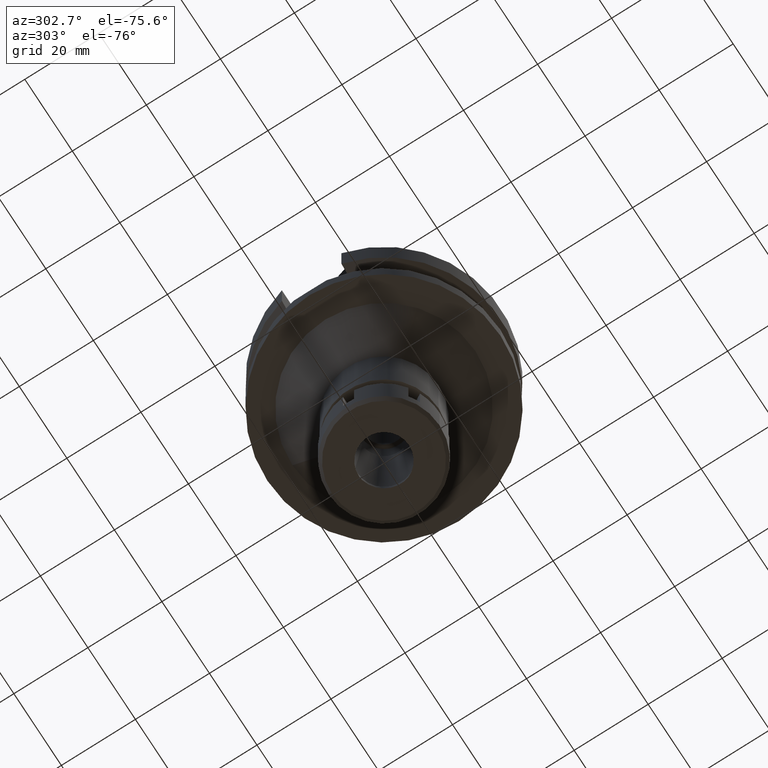
[diagram: clean part render]
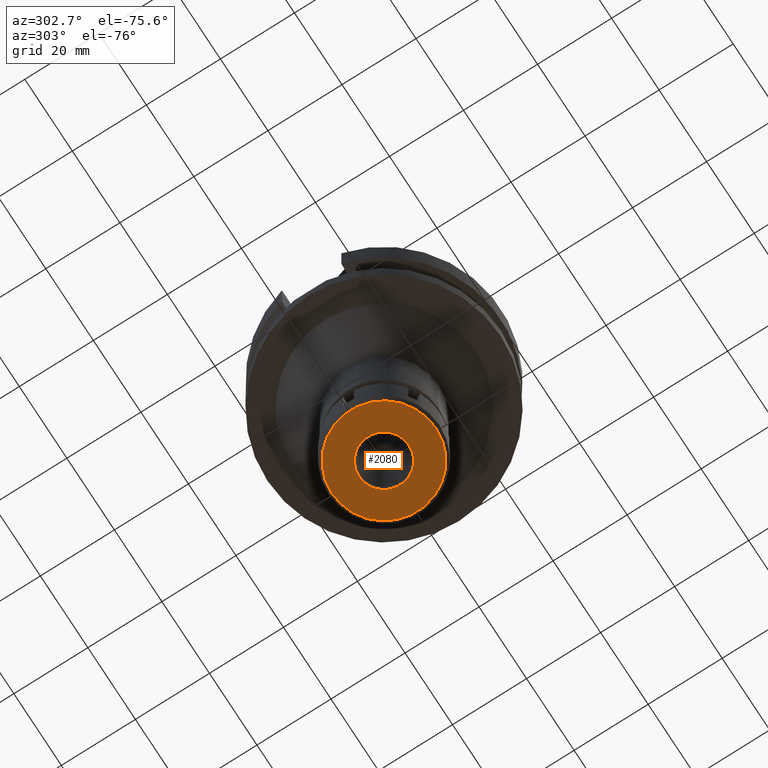
[diagram: same view with one face highlighted and labeled with its STEP entity id]
A machine part, auxiliary view. The second image highlights one B-rep face of the part: STEP entity #2080.
In plain terms, the highlighted planar face has unit normal (0, 0, -1).
Its self-contained STEP definition (entity closure, byte-faithful):
#111 = CARTESIAN_POINT ( 'NONE',  ( 0.0000000000000000000, 6.750000000000000000, -12.50000000000000000 ) ) ;
#212 = CARTESIAN_POINT ( 'NONE',  ( 0.0000000000000000000, 14.09999999999999964, -12.50000000000000000 ) ) ;
#260 = CIRCLE ( 'NONE', #2786, 6.750000000000000000 ) ;
#273 = EDGE_CURVE ( 'NONE', #1224, #3070, #3418, .T. ) ;
#335 = ORIENTED_EDGE ( 'NONE', *, *, #649, .F. ) ;
#367 = VERTEX_POINT ( 'NONE', #111 ) ;
#611 = AXIS2_PLACEMENT_3D ( 'NONE', #2000, #3375, #853 ) ;
#649 = EDGE_CURVE ( 'NONE', #3273, #367, #260, .T. ) ;
#759 = DIRECTION ( 'NONE',  ( 0.0000000000000000000, 0.0000000000000000000, 1.000000000000000000 ) ) ;
#766 = ORIENTED_EDGE ( 'NONE', *, *, #2706, .F. ) ;
#853 = DIRECTION ( 'NONE',  ( 0.0000000000000000000, 1.000000000000000000, 0.0000000000000000000 ) ) ;
#886 = ORIENTED_EDGE ( 'NONE', *, *, #1371, .F. ) ;
#944 = EDGE_LOOP ( 'NONE', ( #886, #335 ) ) ;
#956 = PLANE ( 'NONE',  #2169 ) ;
#978 = EDGE_LOOP ( 'NONE', ( #2941, #766 ) ) ;
#1008 = CARTESIAN_POINT ( 'NONE',  ( 0.0000000000000000000, -6.750000000000000000, -12.50000000000000000 ) ) ;
#1160 = DIRECTION ( 'NONE',  ( 0.0000000000000000000, 0.0000000000000000000, 1.000000000000000000 ) ) ;
#1224 = VERTEX_POINT ( 'NONE', #212 ) ;
#1371 = EDGE_CURVE ( 'NONE', #367, #3273, #2724, .T. ) ;
#1853 = DIRECTION ( 'NONE',  ( 0.0000000000000000000, -1.000000000000000000, 0.0000000000000000000 ) ) ;
#1856 = DIRECTION ( 'NONE',  ( 0.0000000000000000000, -1.000000000000000000, 0.0000000000000000000 ) ) ;
#1882 = DIRECTION ( 'NONE',  ( 0.0000000000000000000, -1.000000000000000000, 0.0000000000000000000 ) ) ;
#2000 = CARTESIAN_POINT ( 'NONE',  ( 0.0000000000000000000, 0.0000000000000000000, -12.50000000000000000 ) ) ;
#2010 = AXIS2_PLACEMENT_3D ( 'NONE', #2162, #759, #1882 ) ;
#2029 = CARTESIAN_POINT ( 'NONE',  ( 0.0000000000000000000, -14.09999999999999964, -12.50000000000000000 ) ) ;
#2080 = ADVANCED_FACE ( 'NONE', ( #2132, #3478 ), #956, .T. ) ;
#2125 = CIRCLE ( 'NONE', #2010, 14.09999999999999964 ) ;
#2132 = FACE_OUTER_BOUND ( 'NONE', #978, .T. ) ;
#2162 = CARTESIAN_POINT ( 'NONE',  ( 0.0000000000000000000, 0.0000000000000000000, -12.50000000000000000 ) ) ;
#2169 = AXIS2_PLACEMENT_3D ( 'NONE', #2637, #3247, #1853 ) ;
#2459 = CARTESIAN_POINT ( 'NONE',  ( 0.0000000000000000000, 0.0000000000000000000, -12.50000000000000000 ) ) ;
#2637 = CARTESIAN_POINT ( 'NONE',  ( 0.0000000000000000000, 0.0000000000000000000, -12.50000000000000000 ) ) ;
#2706 = EDGE_CURVE ( 'NONE', #3070, #1224, #2125, .T. ) ;
#2724 = CIRCLE ( 'NONE', #611, 6.750000000000000000 ) ;
#2786 = AXIS2_PLACEMENT_3D ( 'NONE', #2459, #3308, #1856 ) ;
#2792 = CARTESIAN_POINT ( 'NONE',  ( 0.0000000000000000000, 0.0000000000000000000, -12.50000000000000000 ) ) ;
#2941 = ORIENTED_EDGE ( 'NONE', *, *, #273, .F. ) ;
#3068 = DIRECTION ( 'NONE',  ( 0.0000000000000000000, 1.000000000000000000, 0.0000000000000000000 ) ) ;
#3070 = VERTEX_POINT ( 'NONE', #2029 ) ;
#3247 = DIRECTION ( 'NONE',  ( 0.0000000000000000000, 0.0000000000000000000, -1.000000000000000000 ) ) ;
#3273 = VERTEX_POINT ( 'NONE', #1008 ) ;
#3293 = AXIS2_PLACEMENT_3D ( 'NONE', #2792, #1160, #3068 ) ;
#3308 = DIRECTION ( 'NONE',  ( 0.0000000000000000000, 0.0000000000000000000, -1.000000000000000000 ) ) ;
#3375 = DIRECTION ( 'NONE',  ( 0.0000000000000000000, 0.0000000000000000000, -1.000000000000000000 ) ) ;
#3418 = CIRCLE ( 'NONE', #3293, 14.09999999999999964 ) ;
#3478 = FACE_BOUND ( 'NONE', #944, .T. ) ;